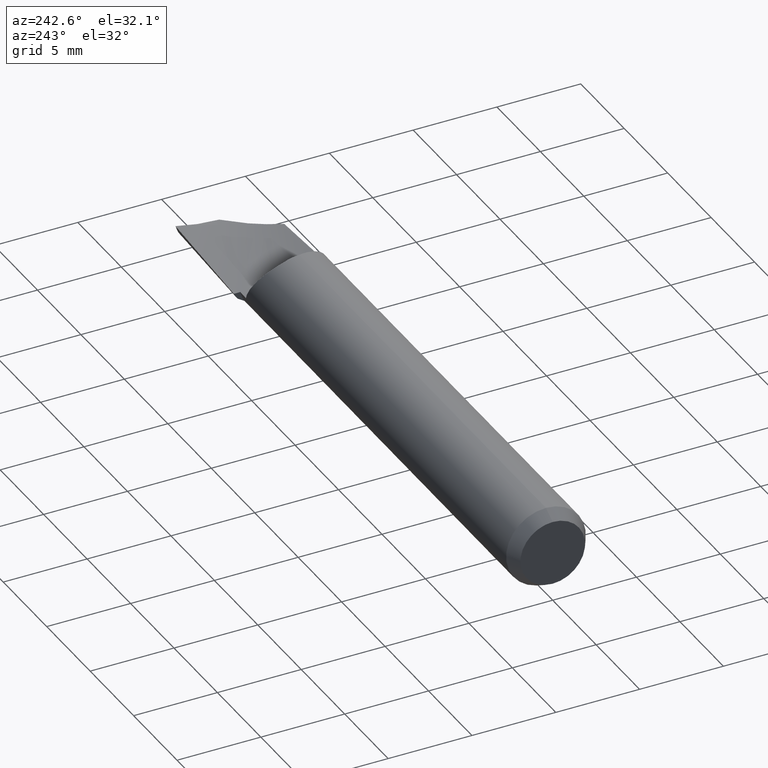
[diagram: clean part render]
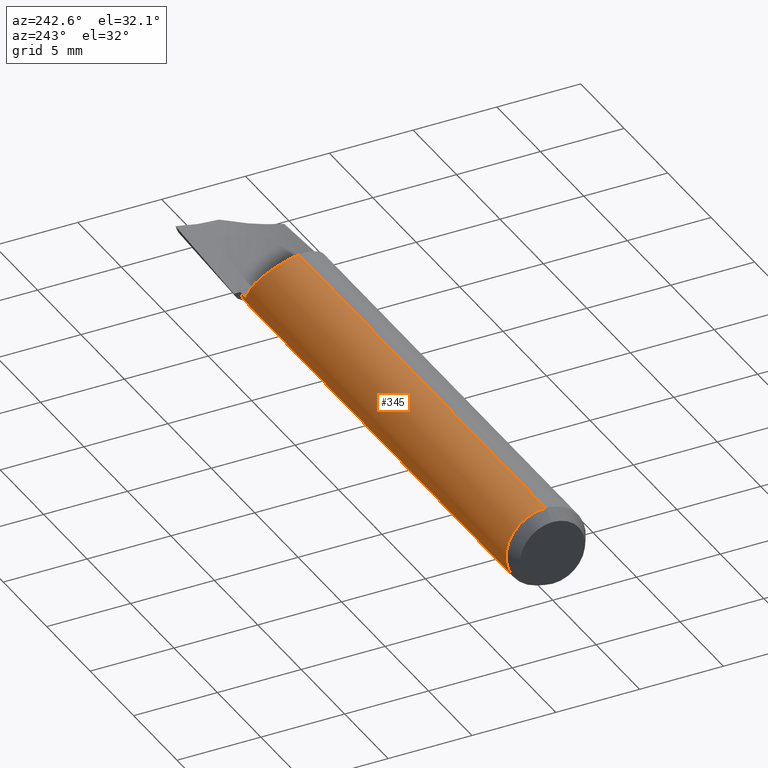
[diagram: same view with one face highlighted and labeled with its STEP entity id]
A machine part, auxiliary view. The second image highlights one B-rep face of the part: STEP entity #345.
In plain terms, the highlighted cylindrical surface (partial cylindrical patch) has radius 2.3787 mm, axis along (-1, -0, -0).
Its self-contained STEP definition (entity closure, byte-faithful):
#6 = DIRECTION ( 'NONE',  ( 0.000000000000000000, 0.000000000000000000, 1.000000000000000000 ) ) ;
#8 = CARTESIAN_POINT ( 'NONE',  ( 1.156695180967257208, 0.06469860383815320692, 0.06771607911251732725 ) ) ;
#9 = CARTESIAN_POINT ( 'NONE',  ( 1.148000000000000131, 0.006204244709569356649, 0.09344426064549808675 ) ) ;
#10 = CARTESIAN_POINT ( 'NONE',  ( 1.239999999999999991, 0.08074344207419088815, -0.04744279778861885261 ) ) ;
#11 = EDGE_CURVE ( 'NONE', #681, #609, #645, .T. ) ;
#12 = VERTEX_POINT ( 'NONE', #541 ) ;
#22 = CARTESIAN_POINT ( 'NONE',  ( 1.171780070111329675, 0.08324920488106210548, 0.04294035540791954486 ) ) ;
#26 = CARTESIAN_POINT ( 'NONE',  ( 1.174651292824942850, 0.08538032817279551934, 0.03847803143860032554 ) ) ;
#31 = CARTESIAN_POINT ( 'NONE',  ( 1.174425359596326102, 0.08522188367699641554, 0.03882769481734219680 ) ) ;
#32 = EDGE_CURVE ( 'NONE', #430, #303, #52, .T. ) ;
#34 = CARTESIAN_POINT ( 'NONE',  ( 0.03057069675359059061, 0.000000000000000000, 0.000000000000000000 ) ) ;
#36 = CARTESIAN_POINT ( 'NONE',  ( 1.239999999999999547, 0.000000000000000000, -0.09364999999999999714 ) ) ;
#43 = CARTESIAN_POINT ( 'NONE',  ( 1.148576821489901256, 0.001826048862966123945, 0.09363472875895696712 ) ) ;
#47 = EDGE_CURVE ( 'NONE', #430, #12, #613, .T. ) ;
#52 = CIRCLE ( 'NONE', #658, 0.09364999999999999714 ) ;
#63 = CIRCLE ( 'NONE', #242, 0.09364999999999999714 ) ;
#66 = CARTESIAN_POINT ( 'NONE',  ( 1.148731579005756620, 0.04212291331834853297, 0.08385177601506467460 ) ) ;
#70 = CARTESIAN_POINT ( 'NONE',  ( 1.240000000000000213, 0.000000000000000000, 0.000000000000000000 ) ) ;
#73 = CARTESIAN_POINT ( 'NONE',  ( 1.194772460887949084, 0.09332505324249035228, 0.007808570231834198461 ) ) ;
#77 = VERTEX_POINT ( 'NONE', #283 ) ;
#78 = CARTESIAN_POINT ( 'NONE',  ( 1.204122698830287330, 0.09357548210034757896, -0.006485616146305918372 ) ) ;
#85 = CARTESIAN_POINT ( 'NONE',  ( 0.03057069675359059061, 1.146881727401496266E-17, -0.09364999999999999714 ) ) ;
#93 = AXIS2_PLACEMENT_3D ( 'NONE', #581, #166, #6 ) ;
#96 = ORIENTED_EDGE ( 'NONE', *, *, #32, .T. ) ;
#98 = EDGE_CURVE ( 'NONE', #609, #664, #231, .T. ) ;
#100 = VERTEX_POINT ( 'NONE', #236 ) ;
#110 = CARTESIAN_POINT ( 'NONE',  ( 1.229999274822195510, 0.08034742759774918253, -0.04811042881477656241 ) ) ;
#111 = DIRECTION ( 'NONE',  ( 0.000000000000000000, 0.000000000000000000, 1.000000000000000000 ) ) ;
#115 = DIRECTION ( 'NONE',  ( 1.000000000000000000, 0.000000000000000000, 0.000000000000000000 ) ) ;
#117 = DIRECTION ( 'NONE',  ( -1.000000000000000000, 0.000000000000000000, 0.000000000000000000 ) ) ;
#121 = CARTESIAN_POINT ( 'NONE',  ( 1.240000000000000213, 0.000000000000000000, 0.000000000000000000 ) ) ;
#124 = DIRECTION ( 'NONE',  ( -1.000000000000000000, -0.000000000000000000, -0.000000000000000000 ) ) ;
#126 = CARTESIAN_POINT ( 'NONE',  ( 1.173307641915292798, 0.08441651375760897413, 0.04056095321443215634 ) ) ;
#128 = EDGE_CURVE ( 'NONE', #100, #159, #401, .T. ) ;
#131 = CARTESIAN_POINT ( 'NONE',  ( 1.174087616056179728, 0.08498293252717985247, 0.03935073517130165122 ) ) ;
#135 = CARTESIAN_POINT ( 'NONE',  ( 1.199968019606115321, 0.09394585953794216959, -8.313324166386058605E-05 ) ) ;
#141 = EDGE_LOOP ( 'NONE', ( #96, #392, #199, #553, #442, #626, #147, #449, #361, #517, #276, #306 ) ) ;
#147 = ORIENTED_EDGE ( 'NONE', *, *, #98, .T. ) ;
#159 = VERTEX_POINT ( 'NONE', #85 ) ;
#165 = CARTESIAN_POINT ( 'NONE',  ( 1.148853733171861569, -8.222118152487938208E-07, 0.09365456280322455307 ) ) ;
#166 = DIRECTION ( 'NONE',  ( -1.000000000000000000, -0.000000000000000000, -0.000000000000000000 ) ) ;
#167 = CARTESIAN_POINT ( 'NONE',  ( 1.157462637525535243, 0.06608533833252450140, 0.06635662391456143006 ) ) ;
#173 = EDGE_CURVE ( 'NONE', #77, #664, #293, .T. ) ;
#176 = DIRECTION ( 'NONE',  ( 0.000000000000000000, 0.000000000000000000, 1.000000000000000000 ) ) ;
#182 = CARTESIAN_POINT ( 'NONE',  ( 0.000000000000000000, 1.146881727401496266E-17, -0.09364999999999999714 ) ) ;
#183 = CARTESIAN_POINT ( 'NONE',  ( 1.227790124694641882, 0.09071330555731095535, -0.02328642545694233415 ) ) ;
#199 = ORIENTED_EDGE ( 'NONE', *, *, #128, .F. ) ;
#212 = CARTESIAN_POINT ( 'NONE',  ( 1.148121537467483799, 0.005183671323934725336, 0.09351202468710630156 ) ) ;
#219 = CARTESIAN_POINT ( 'NONE',  ( 1.148000000000000131, 0.03666875582908384057, 0.08617264557820555892 ) ) ;
#231 = B_SPLINE_CURVE_WITH_KNOTS ( 'NONE', 3,
 ( #232, #66, #647, #280, #476, #387, #530, #8, #636, #167, #375, #244, #341, #489, #597, #342, #22, #126, #131, #31, #26, #338, #291, #604, #243, #441, #394, #448, #654, #551, #240, #548, #73, #135, #78, #497, #660, #247 ),
 .UNSPECIFIED., .F., .F.,
 ( 4, 2, 2, 1, 1, 2, 2, 2, 2, 1, 1, 1, 2, 2, 2, 2, 2, 1, 2, 2, 2, 4 ),
 ( 0.000000000000000000, 0.1250000000000141276, 0.1875000000000214828, 0.2187500000000251466, 0.2343750000000269784, 0.2421875000000279499, 0.2500000000000289213, 0.3750000000000379141, 0.4375000000000425215, 0.4687500000000447420, 0.4843750000000458522, 0.4921875000000469624, 0.4960937500000475731, 0.5000000000000481837, 0.6250000000000336398, 0.6875000000000257572, 0.7187500000000217604, 0.7343750000000192069, 0.7421875000000185407, 0.7500000000000177636, 0.8750000000000089928, 1.000000000000000000 ),
 .UNSPECIFIED. ) ;
#232 = CARTESIAN_POINT ( 'NONE',  ( 1.148000000000000131, 0.03666875582908384057, 0.08617264557820555892 ) ) ;
#236 = CARTESIAN_POINT ( 'NONE',  ( 0.03057069675359059061, 0.000000000000000000, 0.09364999999999999714 ) ) ;
#238 = DIRECTION ( 'NONE',  ( -1.000000000000000000, -0.000000000000000000, -0.000000000000000000 ) ) ;
#239 = EDGE_CURVE ( 'NONE', #568, #681, #565, .T. ) ;
#240 = CARTESIAN_POINT ( 'NONE',  ( 1.193968417897632639, 0.09321453594628099915, 0.009030502199227338767 ) ) ;
#242 = AXIS2_PLACEMENT_3D ( 'NONE', #378, #115, #576 ) ;
#243 = CARTESIAN_POINT ( 'NONE',  ( 1.184988112557211037, 0.09089690410810177812, 0.02269689307588242111 ) ) ;
#244 = CARTESIAN_POINT ( 'NONE',  ( 1.159837862559129018, 0.07019894292448460027, 0.06219465053792667258 ) ) ;
#247 = CARTESIAN_POINT ( 'NONE',  ( 1.215594912558480400, 0.09047690327886798167, -0.02417131508764828671 ) ) ;
#265 = CARTESIAN_POINT ( 'NONE',  ( 1.229999274822195510, 0.08034742759774918253, -0.04811042881477656241 ) ) ;
#272 = VECTOR ( 'NONE', #544, 39.37007874015748143 ) ;
#275 = AXIS2_PLACEMENT_3D ( 'NONE', #334, #117, #111 ) ;
#276 = ORIENTED_EDGE ( 'NONE', *, *, #411, .F. ) ;
#278 = CARTESIAN_POINT ( 'NONE',  ( 1.239999999999999991, 0.08074344207419088815, -0.04744279778861885261 ) ) ;
#280 = CARTESIAN_POINT ( 'NONE',  ( 1.152354427575245976, 0.05497717952771397076, 0.07587532363428109439 ) ) ;
#283 = CARTESIAN_POINT ( 'NONE',  ( 1.240000000000000213, 0.09093235533035093354, -0.02239708137674528005 ) ) ;
#291 = CARTESIAN_POINT ( 'NONE',  ( 1.177129380349658305, 0.08708831898437832675, 0.03464762275841793554 ) ) ;
#293 =( BOUNDED_CURVE ( )  B_SPLINE_CURVE ( 2, ( #494, #183, #445 ),
 .UNSPECIFIED., .F., .T. ) 
 B_SPLINE_CURVE_WITH_KNOTS ( ( 3, 3 ),
 ( 0.3319336809084333928, 0.3630297608688256017 ),
 .UNSPECIFIED. ) 
 CURVE ( )  GEOMETRIC_REPRESENTATION_ITEM ( )  RATIONAL_B_SPLINE_CURVE ( ( 0.9774999438821363462, 0.9777465956879386466, 0.9780868586215527571 ) ) 
 REPRESENTATION_ITEM ( '' )  );
#303 = VERTEX_POINT ( 'NONE', #36 ) ;
#306 = ORIENTED_EDGE ( 'NONE', *, *, #47, .F. ) ;
#310 = CARTESIAN_POINT ( 'NONE',  ( 1.148774162755310746, 0.0005224480527178247983, 0.09364890627534444567 ) ) ;
#314 = VERTEX_POINT ( 'NONE', #110 ) ;
#325 = CARTESIAN_POINT ( 'NONE',  ( 1.229997824466591005, 0.009341362891033938229, -0.09318294598088670833 ) ) ;
#333 = DIRECTION ( 'NONE',  ( -1.000000000000000000, -0.000000000000000000, -0.000000000000000000 ) ) ;
#334 = CARTESIAN_POINT ( 'NONE',  ( 1.148000000000000131, 0.000000000000000000, 0.000000000000000000 ) ) ;
#338 = CARTESIAN_POINT ( 'NONE',  ( 1.174808038669047594, 0.08548901866737286526, 0.03823564250492614280 ) ) ;
#340 =( BOUNDED_CURVE ( )  B_SPLINE_CURVE ( 2, ( #265, #523, #10 ),
 .UNSPECIFIED., .F., .T. ) 
 B_SPLINE_CURVE_WITH_KNOTS ( ( 3, 3 ),
 ( 0.6505143596091164104, 0.6634345089193172118 ),
 .UNSPECIFIED. ) 
 CURVE ( )  GEOMETRIC_REPRESENTATION_ITEM ( )  RATIONAL_B_SPLINE_CURVE ( ( 0.9948189969154002110, 0.9946923966803868922, 0.9945822379532399671 ) ) 
 REPRESENTATION_ITEM ( '' )  );
#341 = CARTESIAN_POINT ( 'NONE',  ( 1.162293407963908010, 0.07366403736510233891, 0.05809885532553646370 ) ) ;
#342 = CARTESIAN_POINT ( 'NONE',  ( 1.170526225384182606, 0.08219295186751621185, 0.04490888344149509409 ) ) ;
#343 = EDGE_CURVE ( 'NONE', #314, #369, #340, .T. ) ;
#345 = ADVANCED_FACE ( 'NONE', ( #482 ), #628, .T. ) ;
#361 = ORIENTED_EDGE ( 'NONE', *, *, #640, .T. ) ;
#369 = VERTEX_POINT ( 'NONE', #278 ) ;
#375 = CARTESIAN_POINT ( 'NONE',  ( 1.157648198041072662, 0.06641091190292093549, 0.06603040088723464984 ) ) ;
#378 = CARTESIAN_POINT ( 'NONE',  ( 1.230000000000000204, 0.000000000000000000, 0.000000000000000000 ) ) ;
#380 = DIRECTION ( 'NONE',  ( 0.000000000000000000, 0.000000000000000000, 1.000000000000000000 ) ) ;
#385 = LINE ( 'NONE', #603, #620 ) ;
#387 = CARTESIAN_POINT ( 'NONE',  ( 1.154840748994309774, 0.06097772784957068010, 0.07109433443434619304 ) ) ;
#392 = ORIENTED_EDGE ( 'NONE', *, *, #505, .T. ) ;
#394 = CARTESIAN_POINT ( 'NONE',  ( 1.189754192620082307, 0.09238053786347413809, 0.01544230418370748023 ) ) ;
#401 = CIRCLE ( 'NONE', #579, 0.09364999999999999714 ) ;
#411 = EDGE_CURVE ( 'NONE', #12, #314, #63, .T. ) ;
#429 = CARTESIAN_POINT ( 'NONE',  ( 1.240000000000000213, 0.01010341027200484937, -0.09310340273521444665 ) ) ;
#430 = VERTEX_POINT ( 'NONE', #429 ) ;
#431 = AXIS2_PLACEMENT_3D ( 'NONE', #70, #238, #380 ) ;
#436 = CARTESIAN_POINT ( 'NONE',  ( 1.215594912558480400, 0.09047690327886798167, -0.02417131508764828671 ) ) ;
#441 = CARTESIAN_POINT ( 'NONE',  ( 1.186810873186450177, 0.09155667894686905783, 0.01992288076578411712 ) ) ;
#442 = ORIENTED_EDGE ( 'NONE', *, *, #239, .T. ) ;
#445 = CARTESIAN_POINT ( 'NONE',  ( 1.215594912558480400, 0.09047690327886798167, -0.02417131508764828671 ) ) ;
#448 = CARTESIAN_POINT ( 'NONE',  ( 1.190770162179588754, 0.09262740064500482595, 0.01389563661331235517 ) ) ;
#449 = ORIENTED_EDGE ( 'NONE', *, *, #173, .F. ) ;
#464 = CARTESIAN_POINT ( 'NONE',  ( 1.148000000000000131, 0.006204244709569356649, 0.09344426064549808675 ) ) ;
#465 = CIRCLE ( 'NONE', #431, 0.09364999999999999714 ) ;
#476 = CARTESIAN_POINT ( 'NONE',  ( 1.153281466429439517, 0.05742683072763598434, 0.07404014007290452004 ) ) ;
#482 = FACE_OUTER_BOUND ( 'NONE', #141, .T. ) ;
#489 = CARTESIAN_POINT ( 'NONE',  ( 1.166568753093929933, 0.07847585622821492968, 0.05118348085090294874 ) ) ;
#494 = CARTESIAN_POINT ( 'NONE',  ( 1.240000000000000213, 0.09093235533035093354, -0.02239708137674528005 ) ) ;
#497 = CARTESIAN_POINT ( 'NONE',  ( 1.210961540492779598, 0.09224549721883343323, -0.01700594925194965495 ) ) ;
#502 = EDGE_CURVE ( 'NONE', #568, #100, #385, .T. ) ;
#505 = EDGE_CURVE ( 'NONE', #303, #159, #558, .T. ) ;
#506 = CARTESIAN_POINT ( 'NONE',  ( 1.148317697306481922, 0.003641870858028419325, 0.09358919242731114640 ) ) ;
#513 = CARTESIAN_POINT ( 'NONE',  ( 1.148694361362348815, 0.001044343715851137359, 0.09364454038938524461 ) ) ;
#517 = ORIENTED_EDGE ( 'NONE', *, *, #343, .F. ) ;
#523 = CARTESIAN_POINT ( 'NONE',  ( 1.234997358171130433, 0.08055064010576537537, -0.04777092967153871717 ) ) ;
#530 = CARTESIAN_POINT ( 'NONE',  ( 1.155662571347639389, 0.06272228013036580674, 0.06957321465528010229 ) ) ;
#534 = CARTESIAN_POINT ( 'NONE',  ( 1.234997358170834669, 0.009725048957912117709, -0.09314446181012504822 ) ) ;
#541 = CARTESIAN_POINT ( 'NONE',  ( 1.229997824466591005, 0.009341362891033938229, -0.09318294598088670833 ) ) ;
#544 = DIRECTION ( 'NONE',  ( -1.000000000000000000, -0.000000000000000000, -0.000000000000000000 ) ) ;
#548 = CARTESIAN_POINT ( 'NONE',  ( 1.194519981529422514, 0.09329194702683744900, 0.008192209811309565312 ) ) ;
#551 = CARTESIAN_POINT ( 'NONE',  ( 1.193147609277754428, 0.09309075473232310272, 0.01027834848644169213 ) ) ;
#553 = ORIENTED_EDGE ( 'NONE', *, *, #502, .F. ) ;
#558 = LINE ( 'NONE', #182, #272 ) ;
#564 = CARTESIAN_POINT ( 'NONE',  ( 1.148823123821433256, 0.0002083311573133314371, 0.09365000102506688962 ) ) ;
#565 = B_SPLINE_CURVE_WITH_KNOTS ( 'NONE', 3,
 ( #574, #564, #310, #513, #43, #506, #212, #464 ),
 .UNSPECIFIED., .F., .F.,
 ( 4, 2, 1, 1, 4 ),
 ( 0.9570273027410860500, 0.9623988898984501272, 0.9677704770558140934, 0.9785136513705426919, 1.000000000000000000 ),
 .UNSPECIFIED. ) ;
#568 = VERTEX_POINT ( 'NONE', #165 ) ;
#574 = CARTESIAN_POINT ( 'NONE',  ( 1.148853733171861569, -8.222118152487938208E-07, 0.09365456280322455307 ) ) ;
#576 = DIRECTION ( 'NONE',  ( 0.000000000000000000, 0.000000000000000000, -1.000000000000000000 ) ) ;
#579 = AXIS2_PLACEMENT_3D ( 'NONE', #34, #124, #599 ) ;
#581 = CARTESIAN_POINT ( 'NONE',  ( 0.000000000000000000, 0.000000000000000000, 0.000000000000000000 ) ) ;
#597 = CARTESIAN_POINT ( 'NONE',  ( 1.168092539307745481, 0.08001499355301554262, 0.04875028103858883993 ) ) ;
#599 = DIRECTION ( 'NONE',  ( 0.000000000000000000, 0.000000000000000000, 1.000000000000000000 ) ) ;
#603 = CARTESIAN_POINT ( 'NONE',  ( 0.000000000000000000, 0.000000000000000000, 0.09364999999999999714 ) ) ;
#604 = CARTESIAN_POINT ( 'NONE',  ( 1.179938187649041126, 0.08874494981241738689, 0.03038010713828132037 ) ) ;
#609 = VERTEX_POINT ( 'NONE', #219 ) ;
#613 =( BOUNDED_CURVE ( )  B_SPLINE_CURVE ( 2, ( #639, #534, #325 ),
 .UNSPECIFIED., .F., .T. ) 
 B_SPLINE_CURVE_WITH_KNOTS ( ( 3, 3 ),
 ( 0.3365654910811017864, 0.3494856403912284248 ),
 .UNSPECIFIED. ) 
 CURVE ( )  GEOMETRIC_REPRESENTATION_ITEM ( )  RATIONAL_B_SPLINE_CURVE ( ( 0.9945822379532471835, 0.9946923966803941086, 0.9948189969154072054 ) ) 
 REPRESENTATION_ITEM ( '' )  );
#620 = VECTOR ( 'NONE', #651, 39.37007874015748143 ) ;
#626 = ORIENTED_EDGE ( 'NONE', *, *, #11, .T. ) ;
#628 = CYLINDRICAL_SURFACE ( 'NONE', #93, 0.09364999999999999714 ) ;
#636 = CARTESIAN_POINT ( 'NONE',  ( 1.157153545848679244, 0.06553243476681304414, 0.06690271648742053545 ) ) ;
#639 = CARTESIAN_POINT ( 'NONE',  ( 1.240000000000000213, 0.01010341027200484937, -0.09310340273521444665 ) ) ;
#640 = EDGE_CURVE ( 'NONE', #77, #369, #465, .T. ) ;
#645 = CIRCLE ( 'NONE', #275, 0.09364999999999999714 ) ;
#647 = CARTESIAN_POINT ( 'NONE',  ( 1.149910759579824804, 0.04742610885864454590, 0.08098158259904253420 ) ) ;
#651 = DIRECTION ( 'NONE',  ( -1.000000000000000000, -0.000000000000000000, -0.000000000000000000 ) ) ;
#654 = CARTESIAN_POINT ( 'NONE',  ( 1.192346411141292029, 0.09294507949201656627, 0.01149717748004220642 ) ) ;
#658 = AXIS2_PLACEMENT_3D ( 'NONE', #121, #333, #176 ) ;
#660 = CARTESIAN_POINT ( 'NONE',  ( 1.213645702931100079, 0.09128810367982434504, -0.02113646257700625003 ) ) ;
#664 = VERTEX_POINT ( 'NONE', #436 ) ;
#681 = VERTEX_POINT ( 'NONE', #9 ) ;